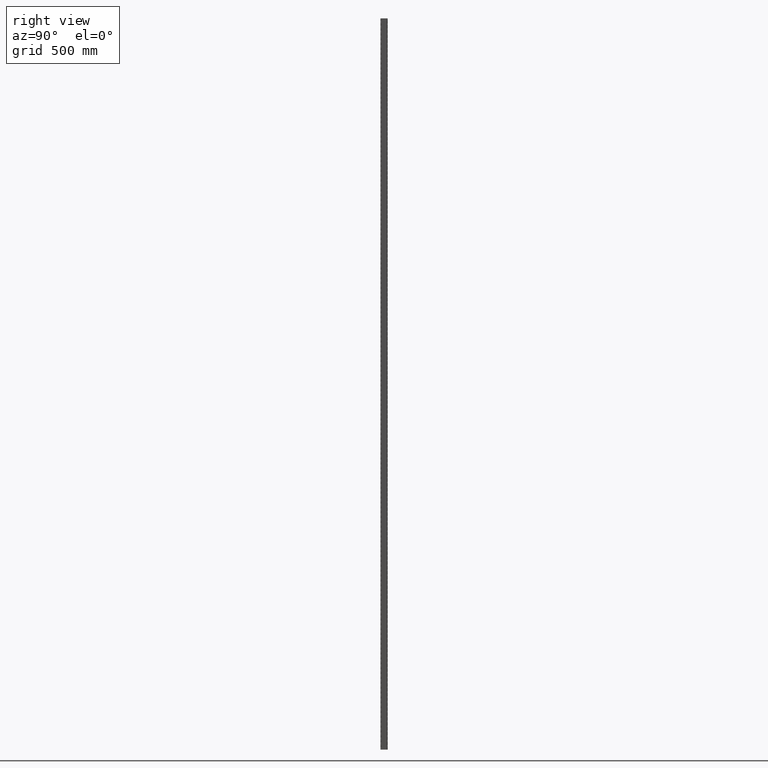
[diagram: clean part render]
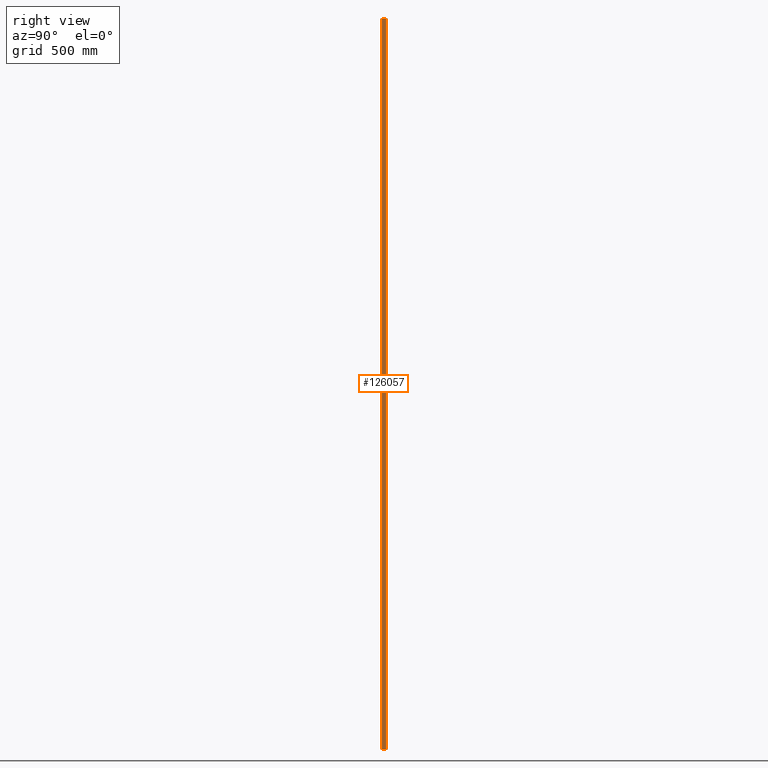
[diagram: same view with one face highlighted and labeled with its STEP entity id]
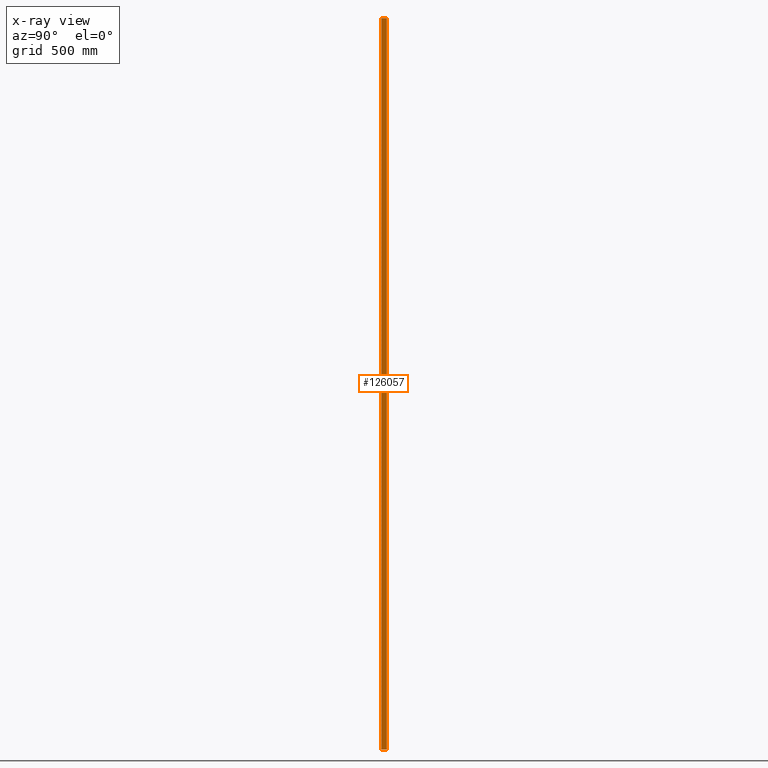
[diagram: x-ray of the same camera — body ghosted, the highlighted face saturated]
A machine part, right view. The second image highlights one B-rep face of the part: STEP entity #126057.
The next image is the same camera in x-ray: the body ghosted, the highlighted face saturated — about 0% of this face is hidden behind the body in this view.
In plain terms, the highlighted planar face has unit normal (1, 0, -0).
Its self-contained STEP definition (entity closure, byte-faithful):
#159 = PLANE ( 'NONE',  #98682 ) ;
#353 = VECTOR ( 'NONE', #12371, 1000.000000000000000 ) ;
#3310 = EDGE_CURVE ( 'NONE', #71997, #98760, #79900, .T. ) ;
#8506 = DIRECTION ( 'NONE',  ( -0.000000000000000000, -0.000000000000000000, -1.000000000000000000 ) ) ;
#12126 = EDGE_LOOP ( 'NONE', ( #70515, #38918, #23967, #73815 ) ) ;
#12371 = DIRECTION ( 'NONE',  ( -2.312964634635742957E-16, 1.000000000000000000, -0.000000000000000000 ) ) ;
#13111 = CARTESIAN_POINT ( 'NONE',  ( 15.00000000000000355, -11.24999999999999822, -3000.000000000000000 ) ) ;
#23450 = EDGE_CURVE ( 'NONE', #57945, #86728, #64878, .T. ) ;
#23967 = ORIENTED_EDGE ( 'NONE', *, *, #76361, .T. ) ;
#29242 = DIRECTION ( 'NONE',  ( -2.312964634635742464E-16, 1.000000000000000000, 0.000000000000000000 ) ) ;
#30530 = DIRECTION ( 'NONE',  ( 1.000000000000000000, 2.312964634635742464E-16, -0.000000000000000000 ) ) ;
#38918 = ORIENTED_EDGE ( 'NONE', *, *, #3310, .T. ) ;
#40062 = VECTOR ( 'NONE', #89590, 1000.000000000000000 ) ;
#45529 = CARTESIAN_POINT ( 'NONE',  ( 14.99999999999999645, 15.00000000000000178, 0.000000000000000000 ) ) ;
#45869 = VECTOR ( 'NONE', #8506, 1000.000000000000000 ) ;
#49144 = CARTESIAN_POINT ( 'NONE',  ( 14.99999999999999645, 15.00000000000000178, -3000.000000000000000 ) ) ;
#57945 = VERTEX_POINT ( 'NONE', #108439 ) ;
#61751 = CARTESIAN_POINT ( 'NONE',  ( 14.99999999999999645, 15.00000000000000178, -3000.000000000000000 ) ) ;
#64878 = LINE ( 'NONE', #100857, #40062 ) ;
#66318 = DIRECTION ( 'NONE',  ( -2.312964634635742957E-16, 1.000000000000000000, -0.000000000000000000 ) ) ;
#70515 = ORIENTED_EDGE ( 'NONE', *, *, #97072, .F. ) ;
#71997 = VERTEX_POINT ( 'NONE', #121929 ) ;
#73815 = ORIENTED_EDGE ( 'NONE', *, *, #23450, .T. ) ;
#76361 = EDGE_CURVE ( 'NONE', #98760, #57945, #110419, .T. ) ;
#79900 = LINE ( 'NONE', #117332, #45869 ) ;
#86728 = VERTEX_POINT ( 'NONE', #119713 ) ;
#89590 = DIRECTION ( 'NONE',  ( 0.000000000000000000, 0.000000000000000000, 1.000000000000000000 ) ) ;
#97072 = EDGE_CURVE ( 'NONE', #71997, #86728, #110524, .T. ) ;
#98682 = AXIS2_PLACEMENT_3D ( 'NONE', #49144, #30530, #29242 ) ;
#98760 = VERTEX_POINT ( 'NONE', #13111 ) ;
#100857 = CARTESIAN_POINT ( 'NONE',  ( 14.99999999999999645, 11.25000000000000355, -3000.000000000000000 ) ) ;
#108439 = CARTESIAN_POINT ( 'NONE',  ( 14.99999999999999645, 11.25000000000000355, -3000.000000000000000 ) ) ;
#110419 = LINE ( 'NONE', #61751, #353 ) ;
#110524 = LINE ( 'NONE', #45529, #119888 ) ;
#117332 = CARTESIAN_POINT ( 'NONE',  ( 15.00000000000000178, -11.24999999999999822, -3000.000000000000000 ) ) ;
#119713 = CARTESIAN_POINT ( 'NONE',  ( 14.99999999999999645, 11.25000000000000355, 0.000000000000000000 ) ) ;
#119888 = VECTOR ( 'NONE', #66318, 1000.000000000000000 ) ;
#120610 = FACE_OUTER_BOUND ( 'NONE', #12126, .T. ) ;
#121929 = CARTESIAN_POINT ( 'NONE',  ( 15.00000000000000355, -11.24999999999999822, 0.000000000000000000 ) ) ;
#126057 = ADVANCED_FACE ( 'NONE', ( #120610 ), #159, .T. ) ;